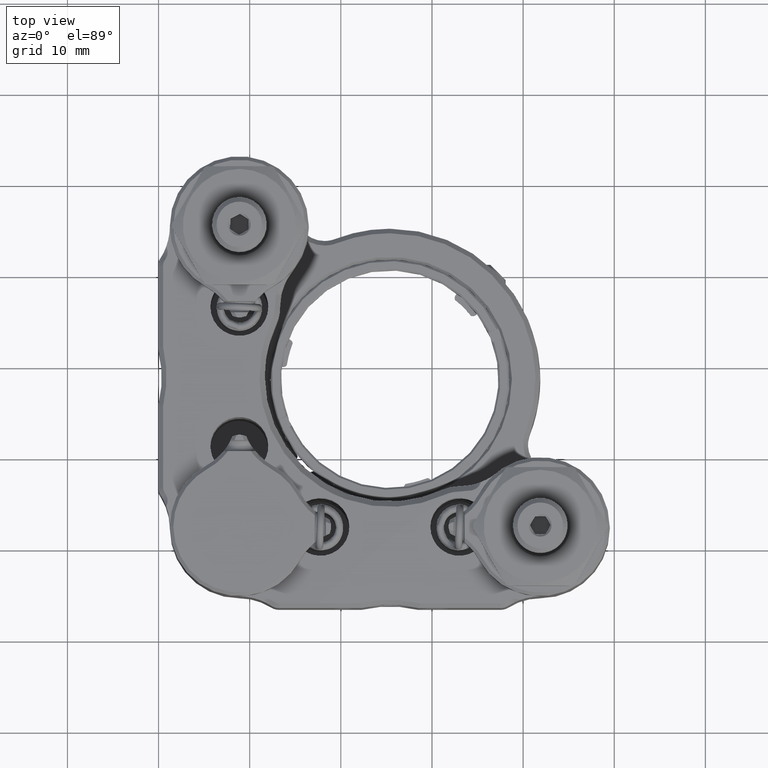
[diagram: clean part render]
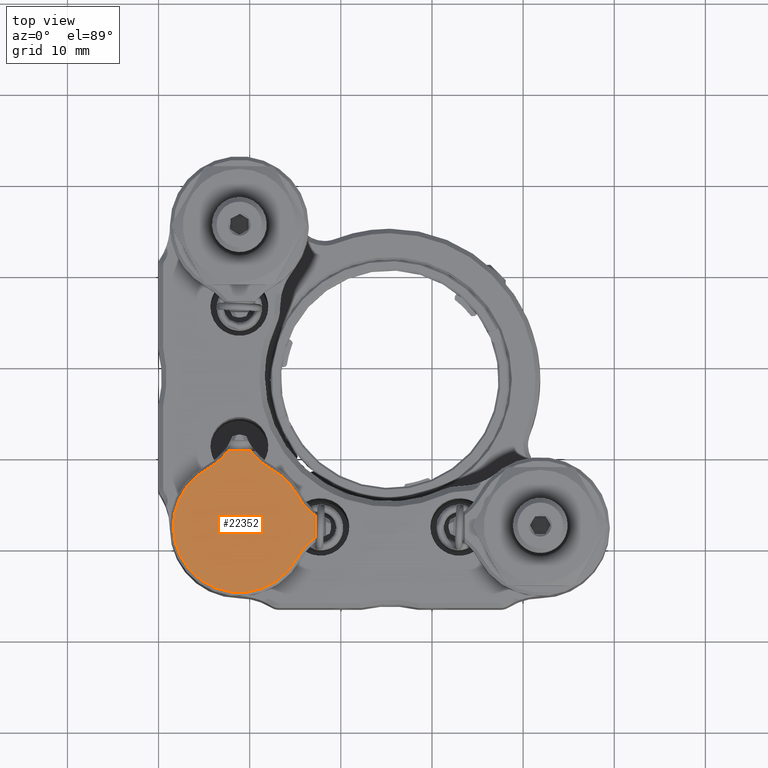
[diagram: same view with one face highlighted and labeled with its STEP entity id]
A machine part, top view. The second image highlights one B-rep face of the part: STEP entity #22352.
In plain terms, the highlighted planar face has unit normal (0, 0, -1).
Its self-contained STEP definition (entity closure, byte-faithful):
#457 = CARTESIAN_POINT ( 'NONE',  ( 17.15425173361367328, 4.811597397248325692, 40.91670909685328894 ) ) ;
#492 = DIRECTION ( 'NONE',  ( -1.000000000000000000, 0.000000000000000000, 0.000000000000000000 ) ) ;
#1022 = CIRCLE ( 'NONE', #6520, 7.239000000000033630 ) ;
#1172 = VERTEX_POINT ( 'NONE', #14172 ) ;
#1178 = ORIENTED_EDGE ( 'NONE', *, *, #20733, .T. ) ;
#1450 = EDGE_CURVE ( 'NONE', #8958, #14132, #15810, .T. ) ;
#1526 = AXIS2_PLACEMENT_3D ( 'NONE', #17371, #12217, #8245 ) ;
#1561 = VERTEX_POINT ( 'NONE', #9380 ) ;
#1904 = EDGE_CURVE ( 'NONE', #5674, #3665, #1022, .T. ) ;
#1934 = DIRECTION ( 'NONE',  ( -1.000000000000000000, 0.000000000000000000, 0.000000000000000000 ) ) ;
#2102 = CARTESIAN_POINT ( 'NONE',  ( 21.23734720772224449, 18.86355623382385360, 40.91670909685328894 ) ) ;
#2177 = CARTESIAN_POINT ( 'NONE',  ( 1.622151733613259150, 12.11409739724833301, 40.91670909685328894 ) ) ;
#2201 = CARTESIAN_POINT ( 'NONE',  ( 17.15425173361347078, 10.87467443617364360, 40.91670909685328894 ) ) ;
#2351 = CARTESIAN_POINT ( 'NONE',  ( 17.15425173361367328, 4.811597397248325692, 40.91670909685328894 ) ) ;
#2542 = LINE ( 'NONE', #457, #9432 ) ;
#2650 = DIRECTION ( 'NONE',  ( -0.000000000000000000, -0.000000000000000000, -1.000000000000000000 ) ) ;
#2923 = DIRECTION ( 'NONE',  ( -1.000000000000000000, 0.000000000000000000, 0.000000000000000000 ) ) ;
#2957 = CIRCLE ( 'NONE', #11238, 7.239000000000033630 ) ;
#3320 = ORIENTED_EDGE ( 'NONE', *, *, #1450, .F. ) ;
#3665 = VERTEX_POINT ( 'NONE', #16317 ) ;
#4697 = VERTEX_POINT ( 'NONE', #17992 ) ;
#5011 = CARTESIAN_POINT ( 'NONE',  ( 2.111692897037557248, 24.49029287135772037, 40.91670909685328894 ) ) ;
#5294 = CARTESIAN_POINT ( 'NONE',  ( 17.15425173361342814, 12.11409739724840939, 40.91670909685328894 ) ) ;
#5304 = DIRECTION ( 'NONE',  ( -0.000000000000000000, -0.000000000000000000, -1.000000000000000000 ) ) ;
#5324 = DIRECTION ( 'NONE',  ( 1.000000000000000000, -3.622445936165473461E-14, 0.000000000000000000 ) ) ;
#5475 = EDGE_CURVE ( 'NONE', #1172, #4697, #17430, .T. ) ;
#5674 = VERTEX_POINT ( 'NONE', #2177 ) ;
#5697 = DIRECTION ( 'NONE',  ( -1.000000000000000000, 0.000000000000000000, 0.000000000000000000 ) ) ;
#5833 = ORIENTED_EDGE ( 'NONE', *, *, #1904, .T. ) ;
#6174 = FACE_OUTER_BOUND ( 'NONE', #18897, .T. ) ;
#6520 = AXIS2_PLACEMENT_3D ( 'NONE', #23346, #13640, #9802 ) ;
#6602 = DIRECTION ( 'NONE',  ( 1.000000000000000000, -3.622445936165473461E-14, 0.000000000000000000 ) ) ;
#6823 = AXIS2_PLACEMENT_3D ( 'NONE', #24382, #5304, #1934 ) ;
#7150 = LINE ( 'NONE', #14684, #21662 ) ;
#7857 = DIRECTION ( 'NONE',  ( 3.355992410255435891E-14, -1.000000000000000000, 0.000000000000000000 ) ) ;
#8245 = DIRECTION ( 'NONE',  ( -1.000000000000000000, 0.000000000000000000, 0.000000000000000000 ) ) ;
#8958 = VERTEX_POINT ( 'NONE', #21510 ) ;
#8967 = CIRCLE ( 'NONE', #10944, 6.858000000000016527 ) ;
#9380 = CARTESIAN_POINT ( 'NONE',  ( 7.621728772538496344, 20.40719739724838178, 40.91670909685328894 ) ) ;
#9417 = ORIENTED_EDGE ( 'NONE', *, *, #23616, .F. ) ;
#9432 = VECTOR ( 'NONE', #7857, 1000.000000000000000 ) ;
#9659 = CARTESIAN_POINT ( 'NONE',  ( 8.861151733613292336, 12.11409739724833301, 40.91670909685328894 ) ) ;
#9690 = VERTEX_POINT ( 'NONE', #13004 ) ;
#9802 = DIRECTION ( 'NONE',  ( -1.000000000000000000, 0.000000000000000000, 0.000000000000000000 ) ) ;
#10057 = EDGE_CURVE ( 'NONE', #19198, #5674, #2957, .T. ) ;
#10437 = LINE ( 'NONE', #17923, #10644 ) ;
#10470 = CARTESIAN_POINT ( 'NONE',  ( 21.23734720772239726, 5.364638560672374545, 40.91670909685328894 ) ) ;
#10644 = VECTOR ( 'NONE', #6602, 1000.000000000000000 ) ;
#10674 = ORIENTED_EDGE ( 'NONE', *, *, #5475, .T. ) ;
#10944 = AXIS2_PLACEMENT_3D ( 'NONE', #2102, #11497, #5697 ) ;
#11190 = DIRECTION ( 'NONE',  ( 3.355992410255435891E-14, -1.000000000000000000, 0.000000000000000000 ) ) ;
#11238 = AXIS2_PLACEMENT_3D ( 'NONE', #9659, #11647, #19949 ) ;
#11471 = ORIENTED_EDGE ( 'NONE', *, *, #20728, .T. ) ;
#11497 = DIRECTION ( 'NONE',  ( -0.000000000000000000, -0.000000000000000000, -1.000000000000000000 ) ) ;
#11531 = VERTEX_POINT ( 'NONE', #19483 ) ;
#11597 = ORIENTED_EDGE ( 'NONE', *, *, #15642, .T. ) ;
#11647 = DIRECTION ( 'NONE',  ( 0.000000000000000000, 0.000000000000000000, 1.000000000000000000 ) ) ;
#12217 = DIRECTION ( 'NONE',  ( -0.000000000000000000, 0.000000000000000000, -1.000000000000000000 ) ) ;
#12918 = AXIS2_PLACEMENT_3D ( 'NONE', #10470, #21649, #2923 ) ;
#13004 = CARTESIAN_POINT ( 'NONE',  ( 15.21649535545296850, 15.58003571873298299, 40.91670909685328894 ) ) ;
#13176 = ORIENTED_EDGE ( 'NONE', *, *, #15334, .F. ) ;
#13640 = DIRECTION ( 'NONE',  ( 0.000000000000000000, 0.000000000000000000, 1.000000000000000000 ) ) ;
#13807 = AXIS2_PLACEMENT_3D ( 'NONE', #5011, #2650, #20004 ) ;
#14089 = AXIS2_PLACEMENT_3D ( 'NONE', #17501, #17375, #492 ) ;
#14132 = VERTEX_POINT ( 'NONE', #5294 ) ;
#14172 = CARTESIAN_POINT ( 'NONE',  ( 12.32709005509799205, 18.46944101908798430, 40.91670909685328894 ) ) ;
#14184 = ORIENTED_EDGE ( 'NONE', *, *, #19907, .T. ) ;
#14684 = CARTESIAN_POINT ( 'NONE',  ( 13.20522010324164874, 20.40719739724817572, 40.91670909685328894 ) ) ;
#15334 = EDGE_CURVE ( 'NONE', #11531, #4697, #7150, .T. ) ;
#15642 = EDGE_CURVE ( 'NONE', #1561, #19198, #21260, .T. ) ;
#15810 = LINE ( 'NONE', #2351, #17512 ) ;
#16041 = CIRCLE ( 'NONE', #12918, 6.857999999999987217 ) ;
#16202 = ORIENTED_EDGE ( 'NONE', *, *, #22934, .F. ) ;
#16317 = CARTESIAN_POINT ( 'NONE',  ( 15.21649535545315324, 8.648159075763096837, 40.91670909685328894 ) ) ;
#16937 = VERTEX_POINT ( 'NONE', #2201 ) ;
#17371 = CARTESIAN_POINT ( 'NONE',  ( 13.20522010324108209, 4.811597397248193353, 40.91670909685328894 ) ) ;
#17375 = DIRECTION ( 'NONE',  ( 0.000000000000000000, 0.000000000000000000, 1.000000000000000000 ) ) ;
#17430 = CIRCLE ( 'NONE', #6823, 6.858000000000018304 ) ;
#17501 = CARTESIAN_POINT ( 'NONE',  ( 8.861151733613292336, 12.11409739724833301, 40.91670909685328894 ) ) ;
#17512 = VECTOR ( 'NONE', #11190, 1000.000000000000000 ) ;
#17623 = CARTESIAN_POINT ( 'NONE',  ( 5.395213412128386565, 18.46944101908837155, 40.91670909685328894 ) ) ;
#17923 = CARTESIAN_POINT ( 'NONE',  ( 13.20522010324164874, 20.40719739724817572, 40.91670909685328894 ) ) ;
#17992 = CARTESIAN_POINT ( 'NONE',  ( 10.10057469468809543, 20.40719739724829296, 40.91670909685328894 ) ) ;
#18897 = EDGE_LOOP ( 'NONE', ( #3320, #11471, #1178, #10674, #13176, #9417, #11597, #24200, #5833, #14184, #16202 ) ) ;
#19198 = VERTEX_POINT ( 'NONE', #17623 ) ;
#19455 = PLANE ( 'NONE',  #1526 ) ;
#19483 = CARTESIAN_POINT ( 'NONE',  ( 8.861151733613525039, 20.40719739724833204, 40.91670909685328894 ) ) ;
#19907 = EDGE_CURVE ( 'NONE', #3665, #16937, #16041, .T. ) ;
#19949 = DIRECTION ( 'NONE',  ( -1.000000000000000000, -9.585431556716667584E-16, 0.000000000000000000 ) ) ;
#20004 = DIRECTION ( 'NONE',  ( -1.000000000000000000, 0.000000000000000000, 0.000000000000000000 ) ) ;
#20728 = EDGE_CURVE ( 'NONE', #8958, #9690, #8967, .T. ) ;
#20733 = EDGE_CURVE ( 'NONE', #9690, #1172, #22730, .T. ) ;
#21260 = CIRCLE ( 'NONE', #13807, 6.857999999999970342 ) ;
#21510 = CARTESIAN_POINT ( 'NONE',  ( 17.15425173361338906, 13.35352035832249484, 40.91670909685328894 ) ) ;
#21649 = DIRECTION ( 'NONE',  ( -0.000000000000000000, -0.000000000000000000, -1.000000000000000000 ) ) ;
#21662 = VECTOR ( 'NONE', #5324, 1000.000000000000000 ) ;
#22352 = ADVANCED_FACE ( 'NONE', ( #6174 ), #19455, .F. ) ;
#22730 = CIRCLE ( 'NONE', #14089, 7.238999999999593093 ) ;
#22934 = EDGE_CURVE ( 'NONE', #14132, #16937, #2542, .T. ) ;
#23346 = CARTESIAN_POINT ( 'NONE',  ( 8.861151733613292336, 12.11409739724833301, 40.91670909685328894 ) ) ;
#23616 = EDGE_CURVE ( 'NONE', #1561, #11531, #10437, .T. ) ;
#24200 = ORIENTED_EDGE ( 'NONE', *, *, #10057, .T. ) ;
#24382 = CARTESIAN_POINT ( 'NONE',  ( 15.61061057018902787, 24.49029287135772037, 40.91670909685328894 ) ) ;